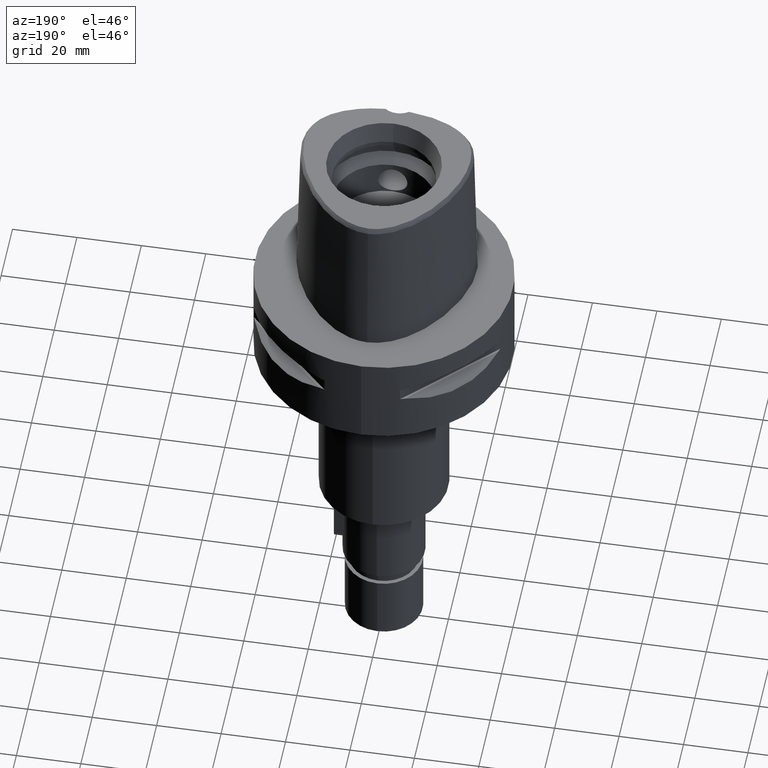
[diagram: clean part render]
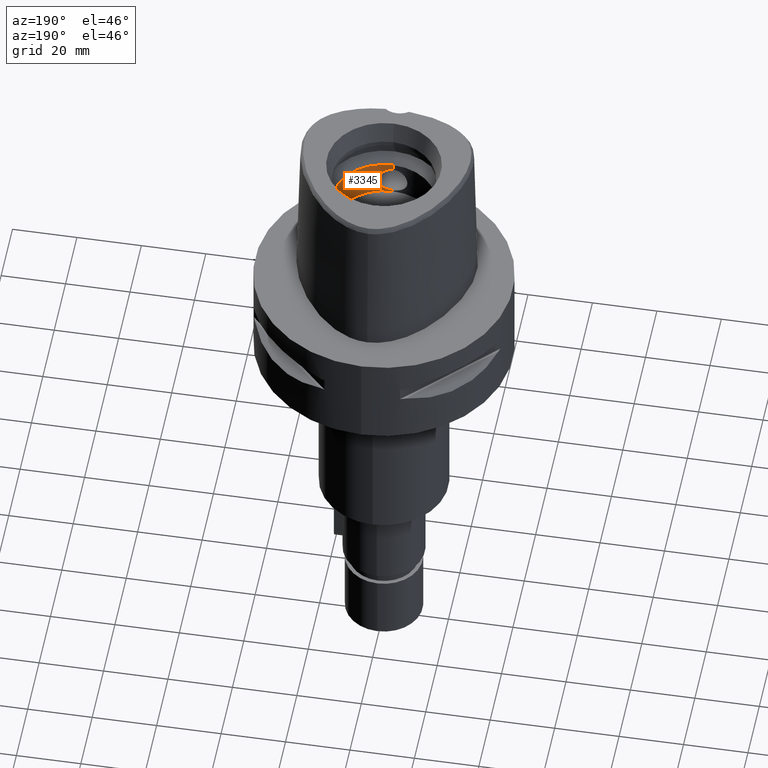
[diagram: same view with one face highlighted and labeled with its STEP entity id]
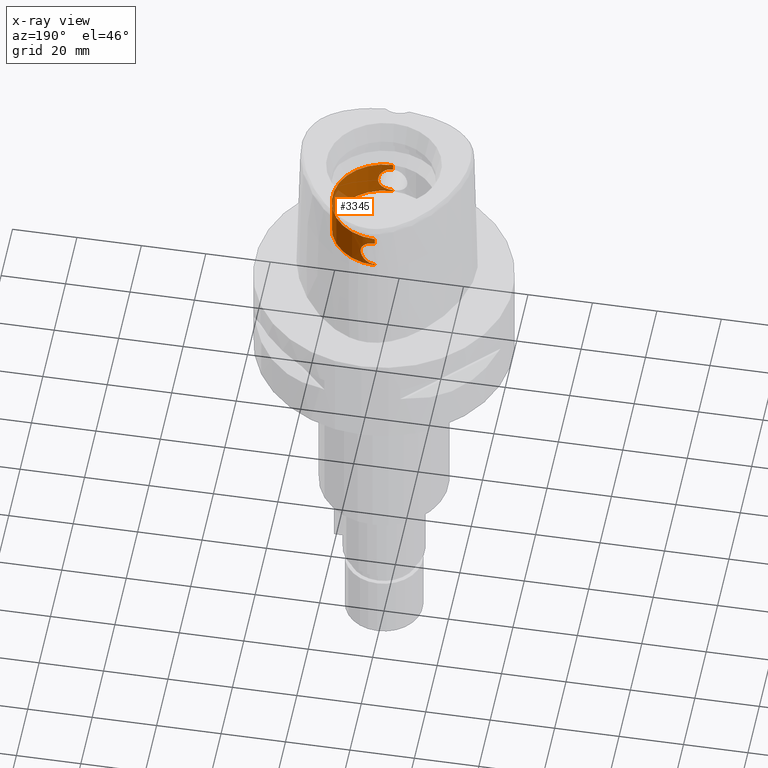
[diagram: x-ray of the same camera — body ghosted, the highlighted face saturated]
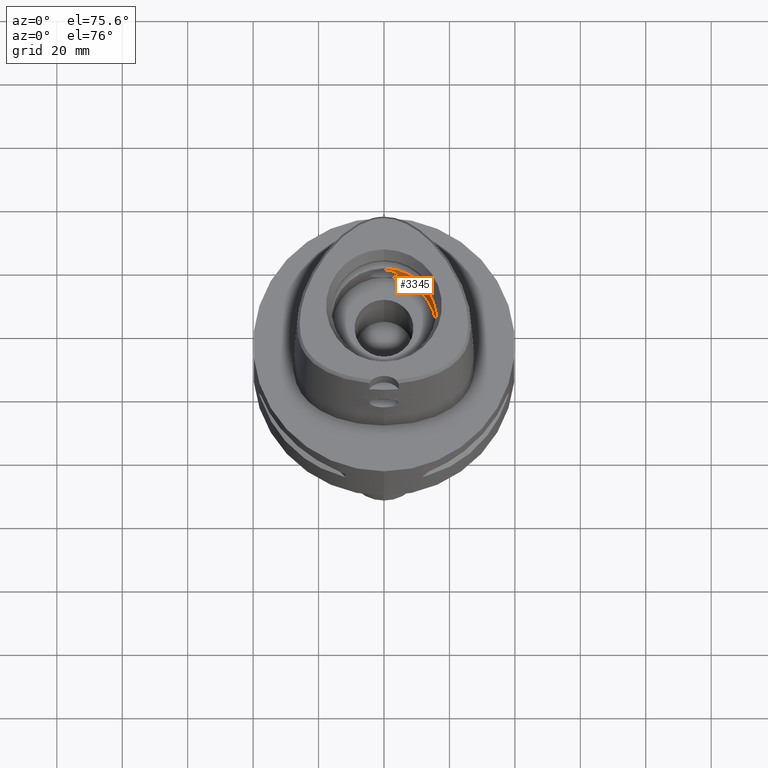
[diagram: same view with one face highlighted and labeled with its STEP entity id]
A machine part, auxiliary view. The second image highlights one B-rep face of the part: STEP entity #3345.
The next image is the same camera in x-ray: the body ghosted, the highlighted face saturated — about 10% of this face is hidden behind the body in this view.
A second angle (auxiliary view) of the same face is appended — the face is thin or edge-on in the first view.
In plain terms, the highlighted cylindrical surface (partial cylindrical patch) has radius 16 mm, axis along (0, 0, -1).
Its self-contained STEP definition (entity closure, byte-faithful):
#1220=DIRECTION('',(0.E0,0.E0,1.E0));
#1221=VECTOR('',#1220,1.95E0);
#1222=CARTESIAN_POINT('',(0.E0,-1.6E1,2.955E1));
#1223=LINE('',#1222,#1221);
#1246=DIRECTION('',(0.E0,0.E0,1.E0));
#1247=VECTOR('',#1246,4.5E-1);
#1248=CARTESIAN_POINT('',(0.E0,-1.6E1,2.E1));
#1249=LINE('',#1248,#1247);
#1253=CARTESIAN_POINT('',(0.E0,1.6E1,2.045E1));
#1254=CARTESIAN_POINT('',(3.988870664284E-1,1.6E1,2.045E1));
#1255=CARTESIAN_POINT('',(1.170967428680E0,1.597054005409E1,2.055220601059E1));
#1256=CARTESIAN_POINT('',(2.269165045144E0,1.585004967254E1,2.099597418438E1));
#1257=CARTESIAN_POINT('',(3.235840392459E0,1.567764940963E1,2.172606052796E1));
#1258=CARTESIAN_POINT('',(3.979931154605E0,1.550129804816E1,2.268485409254E1));
#1259=CARTESIAN_POINT('',(4.449771257924E0,1.536976770899E1,2.382038264550E1));
#1260=CARTESIAN_POINT('',(4.600139872242E0,1.532423623196E1,2.500306615614E1));
#1261=CARTESIAN_POINT('',(4.449671501328E0,1.536974686289E1,2.617034550552E1));
#1262=CARTESIAN_POINT('',(3.998263926289E0,1.549625437505E1,2.727846324912E1));
#1263=CARTESIAN_POINT('',(3.274706598275E0,1.566933645876E1,2.823515726993E1));
#1264=CARTESIAN_POINT('',(2.304752484978E0,1.584537923445E1,2.898659566049E1));
#1265=CARTESIAN_POINT('',(1.179336180185E0,1.597044752780E1,2.944759719027E1));
#1266=CARTESIAN_POINT('',(4.011752150309E-1,1.6E1,2.955E1));
#1267=CARTESIAN_POINT('',(0.E0,1.6E1,2.955E1));
#1272=DIRECTION('',(0.E0,0.E0,1.E0));
#1273=VECTOR('',#1272,1.95E0);
#1274=CARTESIAN_POINT('',(0.E0,1.6E1,2.955E1));
#1275=LINE('',#1274,#1273);
#1279=CARTESIAN_POINT('',(0.E0,-1.6E1,2.955E1));
#1280=CARTESIAN_POINT('',(3.988949840461E-1,-1.6E1,2.955E1));
#1281=CARTESIAN_POINT('',(1.170987392246E0,-1.597053904738E1,2.944779000851E1));
#1282=CARTESIAN_POINT('',(2.269201620188E0,-1.585004458749E1,2.900400791297E1));
#1283=CARTESIAN_POINT('',(3.235861839035E0,-1.567764412795E1,2.827390929896E1));
#1284=CARTESIAN_POINT('',(3.979906728756E0,-1.550130427707E1,2.731518700362E1));
#1285=CARTESIAN_POINT('',(4.449786355208E0,-1.536976358980E1,2.617958816771E1));
#1286=CARTESIAN_POINT('',(4.600141260479E0,-1.532423580536E1,2.499687162329E1));
#1287=CARTESIAN_POINT('',(4.449650824034E0,-1.536975269654E1,2.382959914842E1));
#1288=CARTESIAN_POINT('',(3.998275641248E0,-1.549625137392E1,2.272155873649E1));
#1289=CARTESIAN_POINT('',(3.274680675105E0,-1.566934256353E1,2.176480938883E1));
#1290=CARTESIAN_POINT('',(2.304714680869E0,-1.584538459831E1,2.101338521127E1));
#1291=CARTESIAN_POINT('',(1.179313211587E0,-1.597044876186E1,2.055239805286E1));
#1292=CARTESIAN_POINT('',(4.011661463450E-1,-1.6E1,2.045E1));
#1293=CARTESIAN_POINT('',(0.E0,-1.6E1,2.045E1));
#1298=DIRECTION('',(0.E0,0.E0,1.E0));
#1299=VECTOR('',#1298,4.5E-1);
#1300=CARTESIAN_POINT('',(0.E0,1.6E1,2.E1));
#1301=LINE('',#1300,#1299);
#1335=CARTESIAN_POINT('',(0.E0,0.E0,3.15E1));
#1336=DIRECTION('',(0.E0,0.E0,1.E0));
#1337=DIRECTION('',(0.E0,-1.E0,0.E0));
#1338=AXIS2_PLACEMENT_3D('',#1335,#1336,#1337);
#1487=CARTESIAN_POINT('',(0.E0,0.E0,2.E1));
#1488=DIRECTION('',(0.E0,0.E0,-1.E0));
#1489=DIRECTION('',(0.E0,1.E0,0.E0));
#1490=AXIS2_PLACEMENT_3D('',#1487,#1488,#1489);
#1714=CARTESIAN_POINT('',(0.E0,-1.6E1,2.045E1));
#1715=VERTEX_POINT('',#1714);
#1716=VERTEX_POINT('',#1279);
#1718=CARTESIAN_POINT('',(0.E0,1.6E1,2.045E1));
#1720=VERTEX_POINT('',#1718);
#1723=CARTESIAN_POINT('',(0.E0,1.6E1,2.955E1));
#1724=VERTEX_POINT('',#1723);
#1725=CARTESIAN_POINT('',(0.E0,-1.6E1,3.15E1));
#1726=VERTEX_POINT('',#1725);
#1727=CARTESIAN_POINT('',(0.E0,1.6E1,3.15E1));
#1728=VERTEX_POINT('',#1727);
#1729=CARTESIAN_POINT('',(0.E0,1.6E1,2.E1));
#1730=VERTEX_POINT('',#1729);
#1731=CARTESIAN_POINT('',(0.E0,-1.6E1,2.E1));
#1732=VERTEX_POINT('',#1731);
#3327=CARTESIAN_POINT('',(0.E0,0.E0,5.04E1));
#3328=DIRECTION('',(0.E0,0.E0,-1.E0));
#3329=DIRECTION('',(0.E0,-1.E0,0.E0));
#3330=AXIS2_PLACEMENT_3D('',#3327,#3328,#3329);
#3331=CYLINDRICAL_SURFACE('',#3330,1.6E1);
#3333=ORIENTED_EDGE('',*,*,#3332,.T.);
#3334=ORIENTED_EDGE('',*,*,#3314,.T.);
#3336=ORIENTED_EDGE('',*,*,#3335,.F.);
#3337=ORIENTED_EDGE('',*,*,#3310,.F.);
#3338=ORIENTED_EDGE('',*,*,#3284,.T.);
#3339=ORIENTED_EDGE('',*,*,#3322,.F.);
#3341=ORIENTED_EDGE('',*,*,#3340,.F.);
#3342=ORIENTED_EDGE('',*,*,#3318,.T.);
#3343=EDGE_LOOP('',(#3333,#3334,#3336,#3337,#3338,#3339,#3341,#3342));
#3344=FACE_OUTER_BOUND('',#3343,.F.);
#1268=B_SPLINE_CURVE_WITH_KNOTS('',3,(#1253,#1254,#1255,#1256,#1257,#1258,#1259,
#1260,#1261,#1262,#1263,#1264,#1265,#1266,#1267),.UNSPECIFIED.,.F.,.F.,(4,1,1,1,
1,1,1,1,1,1,1,1,4),(0.E0,8.333333333333E-2,1.666666666667E-1,2.5E-1,
3.333333333333E-1,4.166666666667E-1,5.E-1,5.833333333333E-1,6.666666666667E-1,
7.5E-1,8.333333333333E-1,9.166666666667E-1,1.E0),.UNSPECIFIED.);
#1294=B_SPLINE_CURVE_WITH_KNOTS('',3,(#1279,#1280,#1281,#1282,#1283,#1284,#1285,
#1286,#1287,#1288,#1289,#1290,#1291,#1292,#1293),.UNSPECIFIED.,.F.,.F.,(4,1,1,1,
1,1,1,1,1,1,1,1,4),(0.E0,8.333333333333E-2,1.666666666667E-1,2.5E-1,
3.333333333333E-1,4.166666666667E-1,5.E-1,5.833333333333E-1,6.666666666667E-1,
7.5E-1,8.333333333333E-1,9.166666666667E-1,1.E0),.UNSPECIFIED.);
#1339=CIRCLE('',#1338,1.6E1);
#1491=CIRCLE('',#1490,1.6E1);
#3284=EDGE_CURVE('',#1716,#1715,#1294,.T.);
#3310=EDGE_CURVE('',#1716,#1726,#1223,.T.);
#3314=EDGE_CURVE('',#1724,#1728,#1275,.T.);
#3318=EDGE_CURVE('',#1730,#1720,#1301,.T.);
#3322=EDGE_CURVE('',#1732,#1715,#1249,.T.);
#3332=EDGE_CURVE('',#1720,#1724,#1268,.T.);
#3335=EDGE_CURVE('',#1726,#1728,#1339,.T.);
#3340=EDGE_CURVE('',#1730,#1732,#1491,.T.);
#3345=ADVANCED_FACE('',(#3344),#3331,.F.);